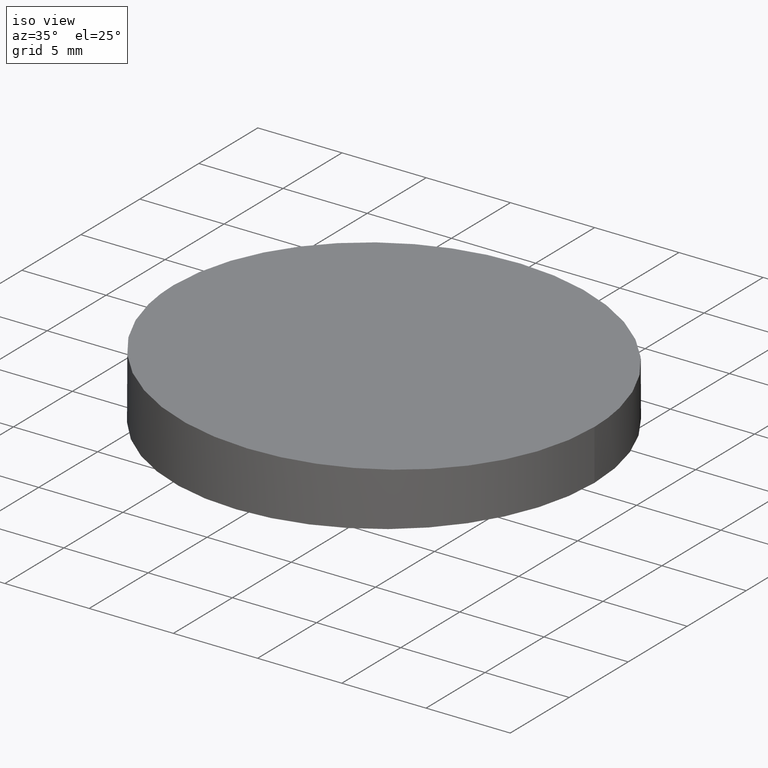
[diagram: clean part render]
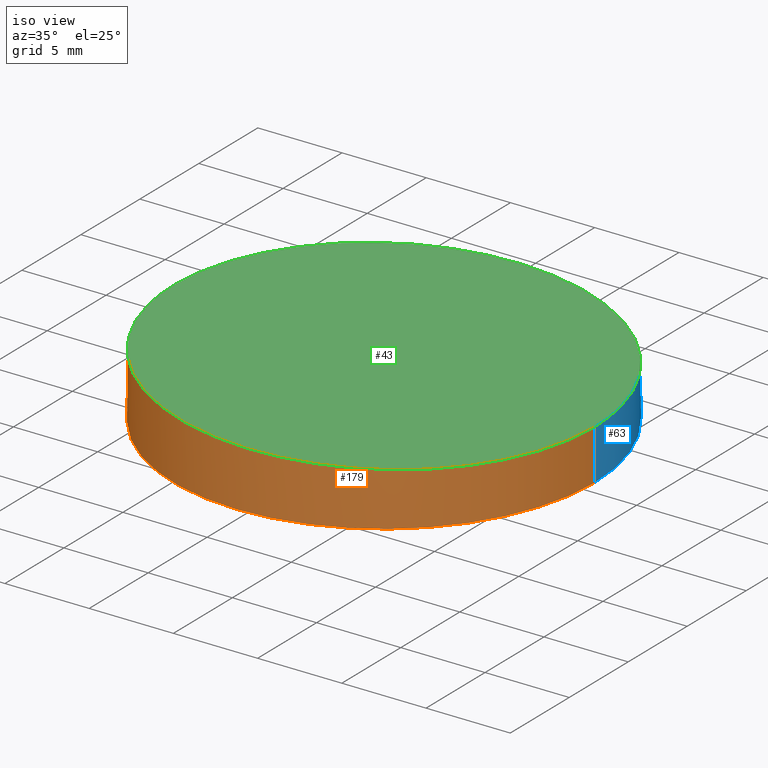
[diagram: same view with three faces highlighted in distinct colors, each labeled with its STEP entity id]
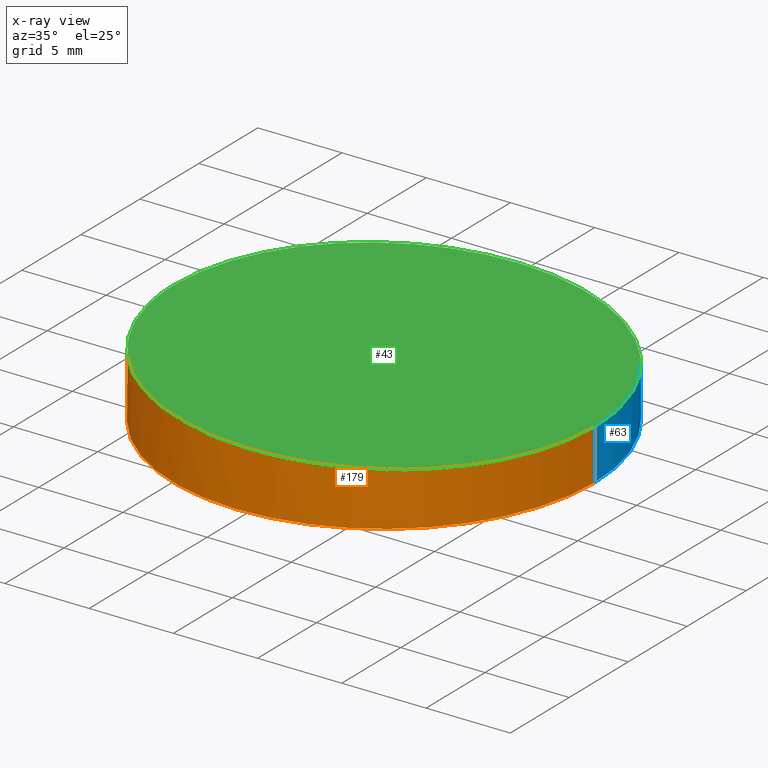
[diagram: x-ray of the same camera — body ghosted, the three highlighted faces saturated]
A machine part, iso view with three faces highlighted in distinct colors.
The next image is the same camera in x-ray (body ghosted, the three faces saturated) — at least one of them is partly hidden behind the body in this view.
Their STEP definitions:

[orange] entity #179 — the highlighted cylindrical surface (partial cylindrical patch) has radius 12.5 mm, axis along (-0, -0, -1).
#20 = EDGE_CURVE ( 'NONE', #116, #243, #138, .T. ) ;
#25 = VERTEX_POINT ( 'NONE', #109 ) ;
#31 = CARTESIAN_POINT ( 'NONE',  ( -12.49999999999999600, 0.0000000000000000000, 3.915834547854477200 ) ) ;
#42 = VERTEX_POINT ( 'NONE', #50 ) ;
#50 = CARTESIAN_POINT ( 'NONE',  ( 12.49999999999999600, 1.530808498934191100E-015, 3.000000000000000000 ) ) ;
#51 = CARTESIAN_POINT ( 'NONE',  ( -12.49999999999999600, 0.0000000000000000000, 10.00000000000000000 ) ) ;
#66 = DIRECTION ( 'NONE',  ( -1.000000000000000000, 0.0000000000000000000, 0.0000000000000000000 ) ) ;
#70 = CARTESIAN_POINT ( 'NONE',  ( 0.0000000000000000000, 0.0000000000000000000, 0.0000000000000000000 ) ) ;
#87 = VECTOR ( 'NONE', #92, 1000.000000000000000 ) ;
#88 = LINE ( 'NONE', #191, #235 ) ;
#92 = DIRECTION ( 'NONE',  ( -0.0000000000000000000, -0.0000000000000000000, -1.000000000000000000 ) ) ;
#98 = ORIENTED_EDGE ( 'NONE', *, *, #20, .T. ) ;
#103 = CIRCLE ( 'NONE', #230, 12.49999999999999600 ) ;
#107 = CARTESIAN_POINT ( 'NONE',  ( -12.49999999999999500, -24.99999999999998900, 3.915834547854476700 ) ) ;
#109 = CARTESIAN_POINT ( 'NONE',  ( 12.49999999999999600, 1.530808498934191100E-015, 0.0000000000000000000 ) ) ;
#116 = VERTEX_POINT ( 'NONE', #31 ) ;
#123 = DIRECTION ( 'NONE',  ( 1.000000000000000000, 0.0000000000000000000, 0.0000000000000000000 ) ) ;
#124 = EDGE_CURVE ( 'NONE', #243, #25, #103, .T. ) ;
#125 = CARTESIAN_POINT ( 'NONE',  ( 12.50000000000000000, -24.99999999999998900, 2.999999999999999600 ) ) ;
#126 = CARTESIAN_POINT ( 'NONE',  ( 0.0000000000000000000, 0.0000000000000000000, 10.00000000000000000 ) ) ;
#136 = CYLINDRICAL_SURFACE ( 'NONE', #182, 12.49999999999999600 ) ;
#138 = LINE ( 'NONE', #51, #87 ) ;
#145 = EDGE_CURVE ( 'NONE', #42, #25, #88, .T. ) ;
#146 =( BOUNDED_CURVE ( )  B_SPLINE_CURVE ( 3, ( #188, #125, #107, #211 ),
 .UNSPECIFIED., .F., .F. ) 
 B_SPLINE_CURVE_WITH_KNOTS ( ( 4, 4 ),
 ( 0.0000000000000000000, 3.141592653589793100 ),
 .UNSPECIFIED. ) 
 CURVE ( )  GEOMETRIC_REPRESENTATION_ITEM ( )  RATIONAL_B_SPLINE_CURVE ( ( 1.000000000000000000, 0.3333333333333333700, 0.3333333333333333700, 1.000000000000000000 ) ) 
 REPRESENTATION_ITEM ( '' )  );
#152 = ORIENTED_EDGE ( 'NONE', *, *, #145, .F. ) ;
#163 = EDGE_CURVE ( 'NONE', #42, #116, #146, .T. ) ;
#166 = DIRECTION ( 'NONE',  ( -0.0000000000000000000, -0.0000000000000000000, -1.000000000000000000 ) ) ;
#170 = DIRECTION ( 'NONE',  ( -0.0000000000000000000, -0.0000000000000000000, -1.000000000000000000 ) ) ;
#177 = EDGE_LOOP ( 'NONE', ( #152, #192, #98, #250 ) ) ;
#179 = ADVANCED_FACE ( 'NONE', ( #234 ), #136, .T. ) ;
#182 = AXIS2_PLACEMENT_3D ( 'NONE', #126, #170, #66 ) ;
#188 = CARTESIAN_POINT ( 'NONE',  ( 12.49999999999999600, 1.530808498934191100E-015, 3.000000000000000000 ) ) ;
#191 = CARTESIAN_POINT ( 'NONE',  ( 12.49999999999999600, 1.530808498934191100E-015, 10.00000000000000000 ) ) ;
#192 = ORIENTED_EDGE ( 'NONE', *, *, #163, .T. ) ;
#196 = CARTESIAN_POINT ( 'NONE',  ( -12.49999999999999600, 0.0000000000000000000, 0.0000000000000000000 ) ) ;
#211 = CARTESIAN_POINT ( 'NONE',  ( -12.49999999999999600, 0.0000000000000000000, 3.915834547854477200 ) ) ;
#230 = AXIS2_PLACEMENT_3D ( 'NONE', #70, #249, #123 ) ;
#234 = FACE_OUTER_BOUND ( 'NONE', #177, .T. ) ;
#235 = VECTOR ( 'NONE', #166, 1000.000000000000000 ) ;
#243 = VERTEX_POINT ( 'NONE', #196 ) ;
#249 = DIRECTION ( 'NONE',  ( 0.0000000000000000000, 0.0000000000000000000, 1.000000000000000000 ) ) ;
#250 = ORIENTED_EDGE ( 'NONE', *, *, #124, .T. ) ;

[blue] entity #63 — the highlighted cylindrical surface (partial cylindrical patch) has radius 12.5 mm, axis along (-0, -0, -1).
#2 = CARTESIAN_POINT ( 'NONE',  ( 0.0000000000000000000, 0.0000000000000000000, 0.0000000000000000000 ) ) ;
#4 = DIRECTION ( 'NONE',  ( 0.0000000000000000000, 0.0000000000000000000, 1.000000000000000000 ) ) ;
#5 = AXIS2_PLACEMENT_3D ( 'NONE', #193, #91, #129 ) ;
#10 = CARTESIAN_POINT ( 'NONE',  ( -12.49999999999999600, 0.0000000000000000000, 3.915834547854477200 ) ) ;
#20 = EDGE_CURVE ( 'NONE', #116, #243, #138, .T. ) ;
#23 = EDGE_CURVE ( 'NONE', #25, #243, #37, .T. ) ;
#25 = VERTEX_POINT ( 'NONE', #109 ) ;
#31 = CARTESIAN_POINT ( 'NONE',  ( -12.49999999999999600, 0.0000000000000000000, 3.915834547854477200 ) ) ;
#35 = ORIENTED_EDGE ( 'NONE', *, *, #217, .T. ) ;
#36 = DIRECTION ( 'NONE',  ( 1.000000000000000000, 0.0000000000000000000, 0.0000000000000000000 ) ) ;
#37 = CIRCLE ( 'NONE', #75, 12.49999999999999600 ) ;
#42 = VERTEX_POINT ( 'NONE', #50 ) ;
#50 = CARTESIAN_POINT ( 'NONE',  ( 12.49999999999999600, 1.530808498934191100E-015, 3.000000000000000000 ) ) ;
#51 = CARTESIAN_POINT ( 'NONE',  ( -12.49999999999999600, 0.0000000000000000000, 10.00000000000000000 ) ) ;
#52 = ORIENTED_EDGE ( 'NONE', *, *, #20, .F. ) ;
#62 = ORIENTED_EDGE ( 'NONE', *, *, #23, .T. ) ;
#63 = ADVANCED_FACE ( 'NONE', ( #197 ), #69, .T. ) ;
#69 = CYLINDRICAL_SURFACE ( 'NONE', #5, 12.49999999999999600 ) ;
#75 = AXIS2_PLACEMENT_3D ( 'NONE', #2, #4, #36 ) ;
#78 = EDGE_LOOP ( 'NONE', ( #35, #94, #62, #52 ) ) ;
#79 = CARTESIAN_POINT ( 'NONE',  ( 12.50000000000000000, 24.99999999999998900, 2.999999999999999600 ) ) ;
#87 = VECTOR ( 'NONE', #92, 1000.000000000000000 ) ;
#88 = LINE ( 'NONE', #191, #235 ) ;
#91 = DIRECTION ( 'NONE',  ( -0.0000000000000000000, -0.0000000000000000000, -1.000000000000000000 ) ) ;
#92 = DIRECTION ( 'NONE',  ( -0.0000000000000000000, -0.0000000000000000000, -1.000000000000000000 ) ) ;
#94 = ORIENTED_EDGE ( 'NONE', *, *, #145, .T. ) ;
#109 = CARTESIAN_POINT ( 'NONE',  ( 12.49999999999999600, 1.530808498934191100E-015, 0.0000000000000000000 ) ) ;
#116 = VERTEX_POINT ( 'NONE', #31 ) ;
#129 = DIRECTION ( 'NONE',  ( -1.000000000000000000, 0.0000000000000000000, 0.0000000000000000000 ) ) ;
#138 = LINE ( 'NONE', #51, #87 ) ;
#139 = CARTESIAN_POINT ( 'NONE',  ( -12.50000000000000500, 24.99999999999998900, 3.915834547854476700 ) ) ;
#145 = EDGE_CURVE ( 'NONE', #42, #25, #88, .T. ) ;
#156 = CARTESIAN_POINT ( 'NONE',  ( 12.49999999999999600, 1.530808498934191100E-015, 3.000000000000000000 ) ) ;
#166 = DIRECTION ( 'NONE',  ( -0.0000000000000000000, -0.0000000000000000000, -1.000000000000000000 ) ) ;
#191 = CARTESIAN_POINT ( 'NONE',  ( 12.49999999999999600, 1.530808498934191100E-015, 10.00000000000000000 ) ) ;
#193 = CARTESIAN_POINT ( 'NONE',  ( 0.0000000000000000000, 0.0000000000000000000, 10.00000000000000000 ) ) ;
#196 = CARTESIAN_POINT ( 'NONE',  ( -12.49999999999999600, 0.0000000000000000000, 0.0000000000000000000 ) ) ;
#197 = FACE_OUTER_BOUND ( 'NONE', #78, .T. ) ;
#217 = EDGE_CURVE ( 'NONE', #116, #42, #218, .T. ) ;
#218 =( BOUNDED_CURVE ( )  B_SPLINE_CURVE ( 3, ( #10, #139, #79, #156 ),
 .UNSPECIFIED., .F., .F. ) 
 B_SPLINE_CURVE_WITH_KNOTS ( ( 4, 4 ),
 ( 3.141592653589793100, 6.283185307179586200 ),
 .UNSPECIFIED. ) 
 CURVE ( )  GEOMETRIC_REPRESENTATION_ITEM ( )  RATIONAL_B_SPLINE_CURVE ( ( 1.000000000000000000, 0.3333333333333333700, 0.3333333333333333700, 1.000000000000000000 ) ) 
 REPRESENTATION_ITEM ( '' )  );
#235 = VECTOR ( 'NONE', #166, 1000.000000000000000 ) ;
#243 = VERTEX_POINT ( 'NONE', #196 ) ;

[green] entity #43 — the highlighted planar face has unit normal (-0.0366, 0, -0.9993).
#1 = DIRECTION ( 'NONE',  ( -0.03660882554267880200, 0.0000000000000000000, -0.9993296722765644400 ) ) ;
#9 = ORIENTED_EDGE ( 'NONE', *, *, #163, .F. ) ;
#10 = CARTESIAN_POINT ( 'NONE',  ( -12.49999999999999600, 0.0000000000000000000, 3.915834547854477200 ) ) ;
#17 = DIRECTION ( 'NONE',  ( -0.9993296722765644400, 0.0000000000000000000, 0.03660882554267880200 ) ) ;
#31 = CARTESIAN_POINT ( 'NONE',  ( -12.49999999999999600, 0.0000000000000000000, 3.915834547854477200 ) ) ;
#32 = AXIS2_PLACEMENT_3D ( 'NONE', #127, #1, #17 ) ;
#34 = PLANE ( 'NONE',  #32 ) ;
#42 = VERTEX_POINT ( 'NONE', #50 ) ;
#43 = ADVANCED_FACE ( 'NONE', ( #143 ), #34, .F. ) ;
#50 = CARTESIAN_POINT ( 'NONE',  ( 12.49999999999999600, 1.530808498934191100E-015, 3.000000000000000000 ) ) ;
#79 = CARTESIAN_POINT ( 'NONE',  ( 12.50000000000000000, 24.99999999999998900, 2.999999999999999600 ) ) ;
#107 = CARTESIAN_POINT ( 'NONE',  ( -12.49999999999999500, -24.99999999999998900, 3.915834547854476700 ) ) ;
#116 = VERTEX_POINT ( 'NONE', #31 ) ;
#125 = CARTESIAN_POINT ( 'NONE',  ( 12.50000000000000000, -24.99999999999998900, 2.999999999999999600 ) ) ;
#127 = CARTESIAN_POINT ( 'NONE',  ( 12.49999999999999600, -25.00000000000000000, 3.000000000000000000 ) ) ;
#133 = ORIENTED_EDGE ( 'NONE', *, *, #217, .F. ) ;
#139 = CARTESIAN_POINT ( 'NONE',  ( -12.50000000000000500, 24.99999999999998900, 3.915834547854476700 ) ) ;
#143 = FACE_OUTER_BOUND ( 'NONE', #158, .T. ) ;
#146 =( BOUNDED_CURVE ( )  B_SPLINE_CURVE ( 3, ( #188, #125, #107, #211 ),
 .UNSPECIFIED., .F., .F. ) 
 B_SPLINE_CURVE_WITH_KNOTS ( ( 4, 4 ),
 ( 0.0000000000000000000, 3.141592653589793100 ),
 .UNSPECIFIED. ) 
 CURVE ( )  GEOMETRIC_REPRESENTATION_ITEM ( )  RATIONAL_B_SPLINE_CURVE ( ( 1.000000000000000000, 0.3333333333333333700, 0.3333333333333333700, 1.000000000000000000 ) ) 
 REPRESENTATION_ITEM ( '' )  );
#156 = CARTESIAN_POINT ( 'NONE',  ( 12.49999999999999600, 1.530808498934191100E-015, 3.000000000000000000 ) ) ;
#158 = EDGE_LOOP ( 'NONE', ( #133, #9 ) ) ;
#163 = EDGE_CURVE ( 'NONE', #42, #116, #146, .T. ) ;
#188 = CARTESIAN_POINT ( 'NONE',  ( 12.49999999999999600, 1.530808498934191100E-015, 3.000000000000000000 ) ) ;
#211 = CARTESIAN_POINT ( 'NONE',  ( -12.49999999999999600, 0.0000000000000000000, 3.915834547854477200 ) ) ;
#217 = EDGE_CURVE ( 'NONE', #116, #42, #218, .T. ) ;
#218 =( BOUNDED_CURVE ( )  B_SPLINE_CURVE ( 3, ( #10, #139, #79, #156 ),
 .UNSPECIFIED., .F., .F. ) 
 B_SPLINE_CURVE_WITH_KNOTS ( ( 4, 4 ),
 ( 3.141592653589793100, 6.283185307179586200 ),
 .UNSPECIFIED. ) 
 CURVE ( )  GEOMETRIC_REPRESENTATION_ITEM ( )  RATIONAL_B_SPLINE_CURVE ( ( 1.000000000000000000, 0.3333333333333333700, 0.3333333333333333700, 1.000000000000000000 ) ) 
 REPRESENTATION_ITEM ( '' )  );